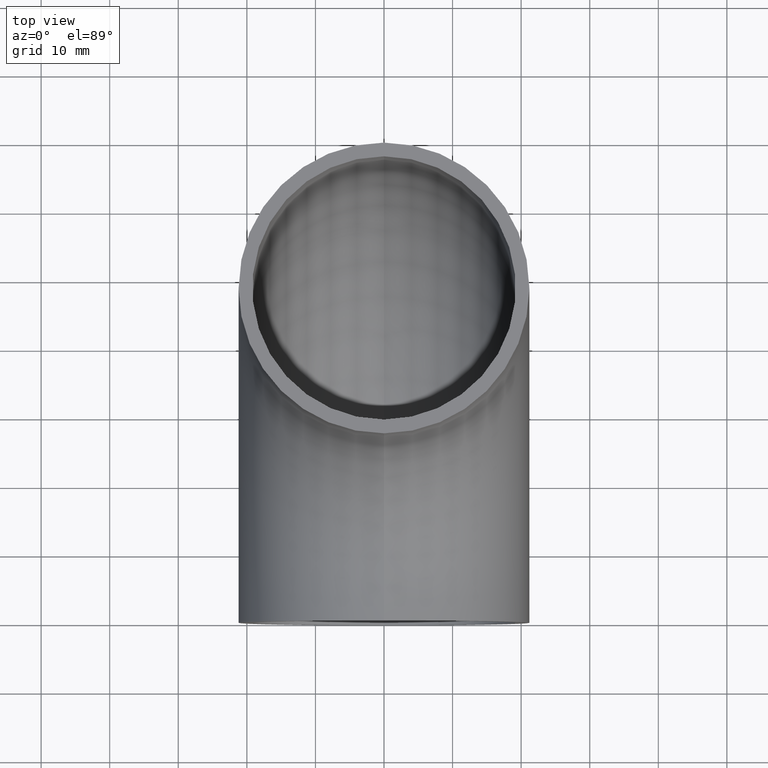
[diagram: clean part render]
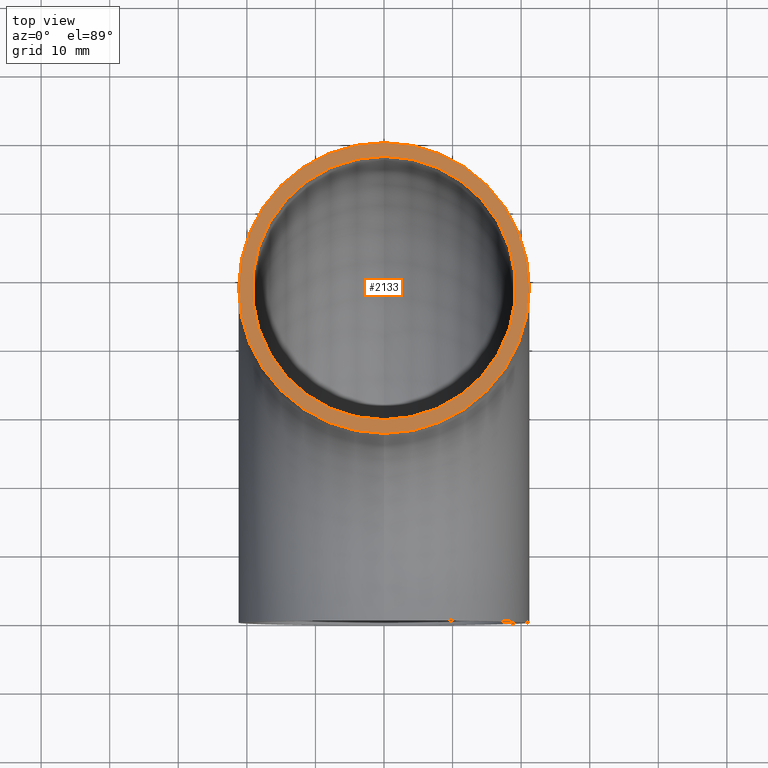
[diagram: same view with one face highlighted and labeled with its STEP entity id]
A machine part, top view. The second image highlights one B-rep face of the part: STEP entity #2133.
In plain terms, the highlighted planar face has unit normal (0, 0, 1).
Its self-contained STEP definition (entity closure, byte-faithful):
#456 = EDGE_CURVE ( 'NONE', #4523, #2228, #799, .T. ) ;
#459 = DIRECTION ( 'NONE',  ( 0.0000000000000000000, 6.123233995736766000E-017, 1.000000000000000000 ) ) ;
#505 = VERTEX_POINT ( 'NONE', #10524 ) ;
#799 = CIRCLE ( 'NONE', #9983, 21.19999999999999900 ) ;
#1221 = AXIS2_PLACEMENT_3D ( 'NONE', #4759, #4259, #5085 ) ;
#1296 = DIRECTION ( 'NONE',  ( 0.0000000000000000000, -1.000000000000000000, 6.123233995736766000E-017 ) ) ;
#1665 = ORIENTED_EDGE ( 'NONE', *, *, #10341, .T. ) ;
#2133 = ADVANCED_FACE ( 'NONE', ( #7974, #3343 ), #3674, .T. ) ;
#2139 = CIRCLE ( 'NONE', #6500, 19.20000000000000300 ) ;
#2228 = VERTEX_POINT ( 'NONE', #7295 ) ;
#2507 = DIRECTION ( 'NONE',  ( 0.0000000000000000000, -1.000000000000000000, 6.123233995736766000E-017 ) ) ;
#2567 = AXIS2_PLACEMENT_3D ( 'NONE', #7711, #459, #1296 ) ;
#3089 = CARTESIAN_POINT ( 'NONE',  ( 0.0000000000000000000, 48.00000000000000000, -2.939152317953647900E-015 ) ) ;
#3326 = CARTESIAN_POINT ( 'NONE',  ( 0.0000000000000000000, 48.00000000000000000, -2.939152317953647900E-015 ) ) ;
#3343 = FACE_OUTER_BOUND ( 'NONE', #5511, .T. ) ;
#3674 = PLANE ( 'NONE',  #2567 ) ;
#3897 = DIRECTION ( 'NONE',  ( 0.0000000000000000000, -1.000000000000000000, 6.123233995736766000E-017 ) ) ;
#4259 = DIRECTION ( 'NONE',  ( 0.0000000000000000000, 6.123233995736766000E-017, 1.000000000000000000 ) ) ;
#4523 = VERTEX_POINT ( 'NONE', #8281 ) ;
#4759 = CARTESIAN_POINT ( 'NONE',  ( 0.0000000000000000000, 48.00000000000000000, -2.939152317953647900E-015 ) ) ;
#4932 = DIRECTION ( 'NONE',  ( 0.0000000000000000000, 6.123233995736766000E-017, 1.000000000000000000 ) ) ;
#5085 = DIRECTION ( 'NONE',  ( 0.0000000000000000000, -1.000000000000000000, 6.123233995736766000E-017 ) ) ;
#5344 = ORIENTED_EDGE ( 'NONE', *, *, #456, .T. ) ;
#5386 = AXIS2_PLACEMENT_3D ( 'NONE', #5849, #6597, #2507 ) ;
#5471 = EDGE_CURVE ( 'NONE', #6531, #505, #5780, .T. ) ;
#5511 = EDGE_LOOP ( 'NONE', ( #5344, #1665 ) ) ;
#5780 = CIRCLE ( 'NONE', #5386, 19.20000000000000300 ) ;
#5849 = CARTESIAN_POINT ( 'NONE',  ( 0.0000000000000000000, 48.00000000000000000, -2.939152317953647900E-015 ) ) ;
#6098 = EDGE_LOOP ( 'NONE', ( #8343, #8495 ) ) ;
#6500 = AXIS2_PLACEMENT_3D ( 'NONE', #3326, #4932, #9935 ) ;
#6531 = VERTEX_POINT ( 'NONE', #9550 ) ;
#6597 = DIRECTION ( 'NONE',  ( 0.0000000000000000000, 6.123233995736766000E-017, 1.000000000000000000 ) ) ;
#7295 = CARTESIAN_POINT ( 'NONE',  ( 0.0000000000000000000, 69.20000000000000300, -4.237277925049843100E-015 ) ) ;
#7711 = CARTESIAN_POINT ( 'NONE',  ( 0.0000000000000000000, 48.00000000000000000, -2.939152317953647900E-015 ) ) ;
#7974 = FACE_BOUND ( 'NONE', #6098, .T. ) ;
#8281 = CARTESIAN_POINT ( 'NONE',  ( 0.0000000000000000000, 26.80000000000000100, -1.641026710857453300E-015 ) ) ;
#8343 = ORIENTED_EDGE ( 'NONE', *, *, #9676, .F. ) ;
#8495 = ORIENTED_EDGE ( 'NONE', *, *, #5471, .F. ) ;
#8558 = CIRCLE ( 'NONE', #1221, 21.19999999999999900 ) ;
#8818 = DIRECTION ( 'NONE',  ( 0.0000000000000000000, 6.123233995736766000E-017, 1.000000000000000000 ) ) ;
#9550 = CARTESIAN_POINT ( 'NONE',  ( 0.0000000000000000000, 67.20000000000000300, -4.114813245135107100E-015 ) ) ;
#9676 = EDGE_CURVE ( 'NONE', #505, #6531, #2139, .T. ) ;
#9935 = DIRECTION ( 'NONE',  ( 0.0000000000000000000, -1.000000000000000000, 6.123233995736766000E-017 ) ) ;
#9983 = AXIS2_PLACEMENT_3D ( 'NONE', #3089, #8818, #3897 ) ;
#10341 = EDGE_CURVE ( 'NONE', #2228, #4523, #8558, .T. ) ;
#10524 = CARTESIAN_POINT ( 'NONE',  ( 0.0000000000000000000, 28.80000000000000100, -1.763491390772188500E-015 ) ) ;